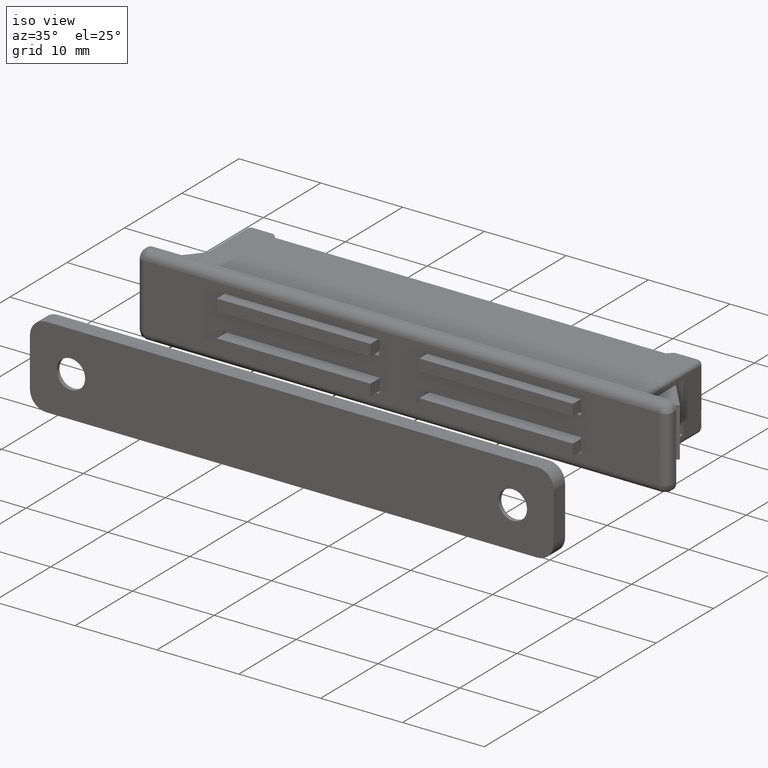
[diagram: clean part render]
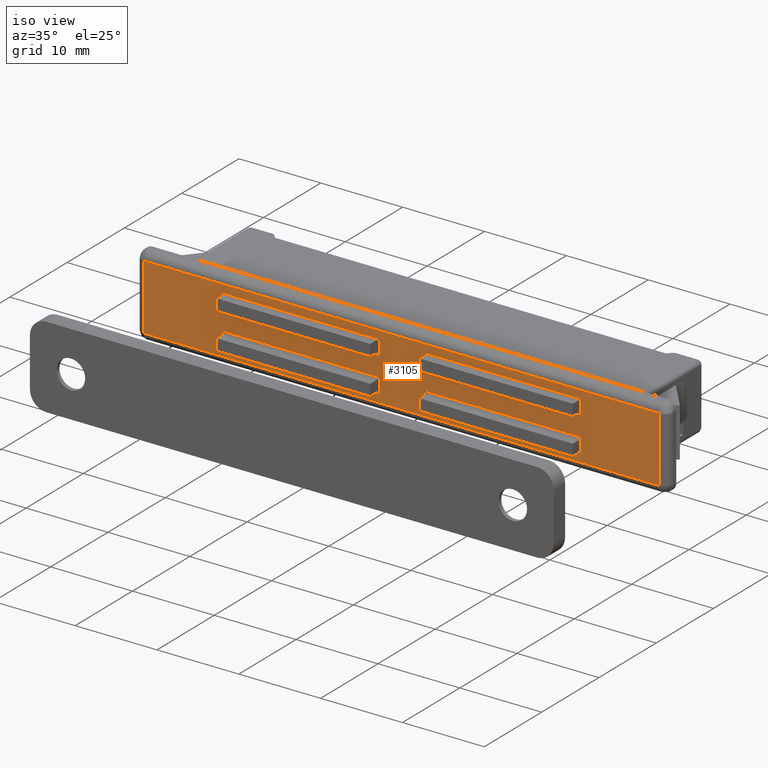
[diagram: same view with one face highlighted and labeled with its STEP entity id]
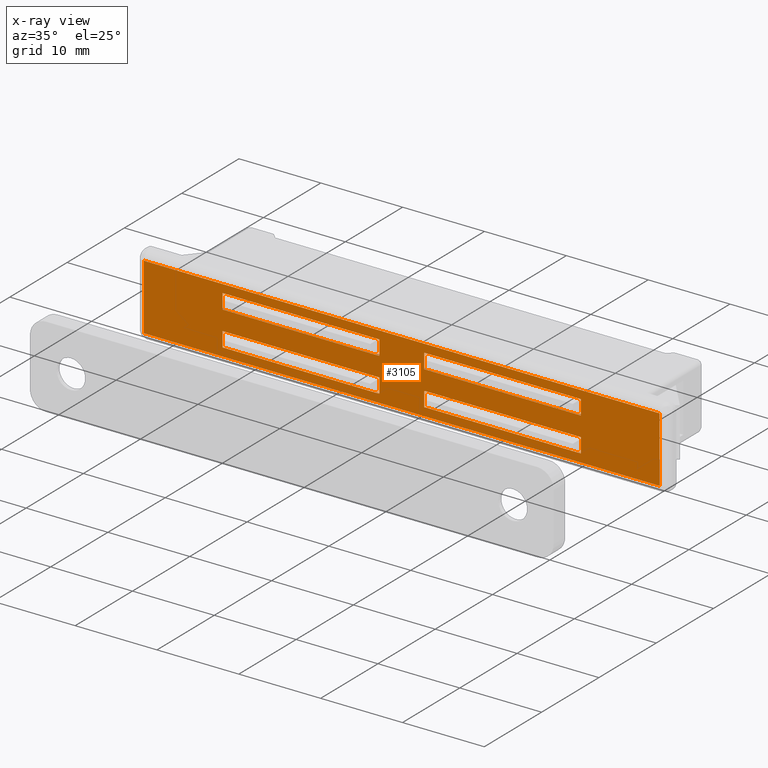
[diagram: x-ray of the same camera — body ghosted, the highlighted face saturated]
A machine part, iso view. The second image highlights one B-rep face of the part: STEP entity #3105.
The next image is the same camera in x-ray: the body ghosted, the highlighted face saturated — about 0% of this face is hidden behind the body in this view.
In plain terms, the highlighted face is a freeform B-spline surface patch.
Its self-contained STEP definition (entity closure, byte-faithful):
#1479=CARTESIAN_POINT('',(-31.500007000000000,-13.0,4.0));
#1480=VERTEX_POINT('',#1479);
#1502=CARTESIAN_POINT('',(-31.500007000000000,-13.0,-4.0));
#1503=VERTEX_POINT('',#1502);
#1515=CARTESIAN_POINT('',(-31.500007000000000,-13.0,4.0));
#1516=CARTESIAN_POINT('',(-31.500007000000000,-13.0,-4.0));
#1517=QUASI_UNIFORM_CURVE('',1,(#1515,#1516),.UNSPECIFIED.,.F.,.U.);
#1518=EDGE_CURVE('',#1480,#1503,#1517,.T.);
#1643=CARTESIAN_POINT('',(31.500004000000001,-13.0,-4.0));
#1644=VERTEX_POINT('',#1643);
#1657=CARTESIAN_POINT('',(-31.500007000000000,-13.0,-4.0));
#1658=CARTESIAN_POINT('',(31.500004000000001,-13.0,-4.0));
#1659=QUASI_UNIFORM_CURVE('',1,(#1657,#1658),.UNSPECIFIED.,.F.,.U.);
#1660=EDGE_CURVE('',#1503,#1644,#1659,.T.);
#1685=CARTESIAN_POINT('',(31.500004000000001,-13.0,4.0));
#1686=VERTEX_POINT('',#1685);
#1706=CARTESIAN_POINT('',(31.500004000000001,-13.0,4.0));
#1707=CARTESIAN_POINT('',(-31.500007000000000,-13.0,4.0));
#1708=QUASI_UNIFORM_CURVE('',1,(#1706,#1707),.UNSPECIFIED.,.F.,.U.);
#1709=EDGE_CURVE('',#1686,#1480,#1708,.T.);
#1840=CARTESIAN_POINT('',(31.500004000000001,-13.0,-4.0));
#1841=CARTESIAN_POINT('',(31.500004000000001,-13.0,4.0));
#1842=QUASI_UNIFORM_CURVE('',1,(#1840,#1841),.UNSPECIFIED.,.F.,.U.);
#1843=EDGE_CURVE('',#1644,#1686,#1842,.T.);
#2974=CARTESIAN_POINT('',(-34.646858018742783,-13.0,4.399599984494448));
#2975=CARTESIAN_POINT('',(34.646856145270768,-13.0,4.399599984494448));
#2976=CARTESIAN_POINT('',(-34.646858018742783,-13.0,-4.399600199071169));
#2977=CARTESIAN_POINT('',(34.646856145270768,-13.0,-4.399600199071169));
#2978=B_SPLINE_SURFACE_WITH_KNOTS('',1,1,((#2974,#2976),(#2975,#2977)),.UNSPECIFIED.,.F.,.F.,.U.,(2,2),(2,2),(0.0,69.293714164013551),(0.0,8.799200183565617),.UNSPECIFIED.);
#2979=ORIENTED_EDGE('',*,*,#1709,.T.);
#2980=ORIENTED_EDGE('',*,*,#1518,.T.);
#2981=ORIENTED_EDGE('',*,*,#1660,.T.);
#2982=ORIENTED_EDGE('',*,*,#1843,.T.);
#2983=EDGE_LOOP('',(#2979,#2980,#2981,#2982));
#2984=FACE_OUTER_BOUND('',#2983,.T.);
#2985=CARTESIAN_POINT('',(-2.750000000000000,-13.0,1.200012000000000));
#2986=VERTEX_POINT('',#2985);
#2987=CARTESIAN_POINT('',(-21.900001000000000,-13.0,1.200012000000000));
#2988=VERTEX_POINT('',#2987);
#2989=CARTESIAN_POINT('',(-2.750000000000000,-13.0,1.200012000000000));
#2990=CARTESIAN_POINT('',(-21.900001000000000,-13.0,1.200012000000000));
#2991=QUASI_UNIFORM_CURVE('',1,(#2989,#2990),.UNSPECIFIED.,.F.,.U.);
#2992=EDGE_CURVE('',#2986,#2988,#2991,.T.);
#2993=ORIENTED_EDGE('',*,*,#2992,.T.);
#2994=CARTESIAN_POINT('',(-21.900001000000000,-13.0,3.0));
#2995=VERTEX_POINT('',#2994);
#2996=CARTESIAN_POINT('',(-21.900001000000000,-13.0,1.200012000000000));
#2997=CARTESIAN_POINT('',(-21.900001000000000,-13.0,3.0));
#2998=QUASI_UNIFORM_CURVE('',1,(#2996,#2997),.UNSPECIFIED.,.F.,.U.);
#2999=EDGE_CURVE('',#2988,#2995,#2998,.T.);
#3000=ORIENTED_EDGE('',*,*,#2999,.T.);
#3001=CARTESIAN_POINT('',(-2.750000000000000,-13.0,3.0));
#3002=VERTEX_POINT('',#3001);
#3003=CARTESIAN_POINT('',(-21.900001000000000,-13.0,3.0));
#3004=CARTESIAN_POINT('',(-2.750000000000000,-13.0,3.0));
#3005=QUASI_UNIFORM_CURVE('',1,(#3003,#3004),.UNSPECIFIED.,.F.,.U.);
#3006=EDGE_CURVE('',#2995,#3002,#3005,.T.);
#3007=ORIENTED_EDGE('',*,*,#3006,.T.);
#3008=CARTESIAN_POINT('',(-2.750000000000000,-13.0,3.0));
#3009=CARTESIAN_POINT('',(-2.750000000000000,-13.0,1.200012000000000));
#3010=QUASI_UNIFORM_CURVE('',1,(#3008,#3009),.UNSPECIFIED.,.F.,.U.);
#3011=EDGE_CURVE('',#3002,#2986,#3010,.T.);
#3012=ORIENTED_EDGE('',*,*,#3011,.T.);
#3013=EDGE_LOOP('',(#2993,#3000,#3007,#3012));
#3014=FACE_BOUND('',#3013,.T.);
#3015=CARTESIAN_POINT('',(2.750004000000000,-13.0,3.0));
#3016=VERTEX_POINT('',#3015);
#3017=CARTESIAN_POINT('',(21.899998000000000,-13.0,3.0));
#3018=VERTEX_POINT('',#3017);
#3019=CARTESIAN_POINT('',(2.750004000000000,-13.0,3.0));
#3020=CARTESIAN_POINT('',(21.899998000000000,-13.0,3.0));
#3021=QUASI_UNIFORM_CURVE('',1,(#3019,#3020),.UNSPECIFIED.,.F.,.U.);
#3022=EDGE_CURVE('',#3016,#3018,#3021,.T.);
#3023=ORIENTED_EDGE('',*,*,#3022,.T.);
#3024=CARTESIAN_POINT('',(21.899998000000000,-13.0,1.200012000000000));
#3025=VERTEX_POINT('',#3024);
#3026=CARTESIAN_POINT('',(21.899998000000000,-13.0,3.0));
#3027=CARTESIAN_POINT('',(21.899998000000000,-13.0,1.200012000000000));
#3028=QUASI_UNIFORM_CURVE('',1,(#3026,#3027),.UNSPECIFIED.,.F.,.U.);
#3029=EDGE_CURVE('',#3018,#3025,#3028,.T.);
#3030=ORIENTED_EDGE('',*,*,#3029,.T.);
#3031=CARTESIAN_POINT('',(2.750004000000000,-13.0,1.200012000000000));
#3032=VERTEX_POINT('',#3031);
#3033=CARTESIAN_POINT('',(21.899998000000000,-13.0,1.200012000000000));
#3034=CARTESIAN_POINT('',(2.750004000000000,-13.0,1.200012000000000));
#3035=QUASI_UNIFORM_CURVE('',1,(#3033,#3034),.UNSPECIFIED.,.F.,.U.);
#3036=EDGE_CURVE('',#3025,#3032,#3035,.T.);
#3037=ORIENTED_EDGE('',*,*,#3036,.T.);
#3038=CARTESIAN_POINT('',(2.750004000000000,-13.0,1.200012000000000));
#3039=CARTESIAN_POINT('',(2.750004000000000,-13.0,3.0));
#3040=QUASI_UNIFORM_CURVE('',1,(#3038,#3039),.UNSPECIFIED.,.F.,.U.);
#3041=EDGE_CURVE('',#3032,#3016,#3040,.T.);
#3042=ORIENTED_EDGE('',*,*,#3041,.T.);
#3043=EDGE_LOOP('',(#3023,#3030,#3037,#3042));
#3044=FACE_BOUND('',#3043,.T.);
#3045=CARTESIAN_POINT('',(-2.750000000000000,-13.0,-3.0));
#3046=VERTEX_POINT('',#3045);
#3047=CARTESIAN_POINT('',(-21.900001000000000,-13.0,-3.0));
#3048=VERTEX_POINT('',#3047);
#3049=CARTESIAN_POINT('',(-2.750000000000000,-13.0,-3.0));
#3050=CARTESIAN_POINT('',(-21.900001000000000,-13.0,-3.0));
#3051=QUASI_UNIFORM_CURVE('',1,(#3049,#3050),.UNSPECIFIED.,.F.,.U.);
#3052=EDGE_CURVE('',#3046,#3048,#3051,.T.);
#3053=ORIENTED_EDGE('',*,*,#3052,.T.);
#3054=CARTESIAN_POINT('',(-21.900001000000000,-13.0,-1.199997000000000));
#3055=VERTEX_POINT('',#3054);
#3056=CARTESIAN_POINT('',(-21.900001000000000,-13.0,-3.0));
#3057=CARTESIAN_POINT('',(-21.900001000000000,-13.0,-1.199997000000000));
#3058=QUASI_UNIFORM_CURVE('',1,(#3056,#3057),.UNSPECIFIED.,.F.,.U.);
#3059=EDGE_CURVE('',#3048,#3055,#3058,.T.);
#3060=ORIENTED_EDGE('',*,*,#3059,.T.);
#3061=CARTESIAN_POINT('',(-2.750000000000000,-13.0,-1.199997000000000));
#3062=VERTEX_POINT('',#3061);
#3063=CARTESIAN_POINT('',(-21.900001000000000,-13.0,-1.199997000000000));
#3064=CARTESIAN_POINT('',(-2.750000000000000,-13.0,-1.199997000000000));
#3065=QUASI_UNIFORM_CURVE('',1,(#3063,#3064),.UNSPECIFIED.,.F.,.U.);
#3066=EDGE_CURVE('',#3055,#3062,#3065,.T.);
#3067=ORIENTED_EDGE('',*,*,#3066,.T.);
#3068=CARTESIAN_POINT('',(-2.750000000000000,-13.0,-1.199997000000000));
#3069=CARTESIAN_POINT('',(-2.750000000000000,-13.0,-3.0));
#3070=QUASI_UNIFORM_CURVE('',1,(#3068,#3069),.UNSPECIFIED.,.F.,.U.);
#3071=EDGE_CURVE('',#3062,#3046,#3070,.T.);
#3072=ORIENTED_EDGE('',*,*,#3071,.T.);
#3073=EDGE_LOOP('',(#3053,#3060,#3067,#3072));
#3074=FACE_BOUND('',#3073,.T.);
#3075=CARTESIAN_POINT('',(21.899998000000000,-13.0,-3.0));
#3076=VERTEX_POINT('',#3075);
#3077=CARTESIAN_POINT('',(2.750004000000000,-13.0,-3.0));
#3078=VERTEX_POINT('',#3077);
#3079=CARTESIAN_POINT('',(21.899998000000000,-13.0,-3.0));
#3080=CARTESIAN_POINT('',(2.750004000000000,-13.0,-3.0));
#3081=QUASI_UNIFORM_CURVE('',1,(#3079,#3080),.UNSPECIFIED.,.F.,.U.);
#3082=EDGE_CURVE('',#3076,#3078,#3081,.T.);
#3083=ORIENTED_EDGE('',*,*,#3082,.T.);
#3084=CARTESIAN_POINT('',(2.750004000000000,-13.0,-1.199997000000000));
#3085=VERTEX_POINT('',#3084);
#3086=CARTESIAN_POINT('',(2.750004000000000,-13.0,-3.0));
#3087=CARTESIAN_POINT('',(2.750004000000000,-13.0,-1.199997000000000));
#3088=QUASI_UNIFORM_CURVE('',1,(#3086,#3087),.UNSPECIFIED.,.F.,.U.);
#3089=EDGE_CURVE('',#3078,#3085,#3088,.T.);
#3090=ORIENTED_EDGE('',*,*,#3089,.T.);
#3091=CARTESIAN_POINT('',(21.899998000000000,-13.0,-1.199997000000000));
#3092=VERTEX_POINT('',#3091);
#3093=CARTESIAN_POINT('',(2.750004000000000,-13.0,-1.199997000000000));
#3094=CARTESIAN_POINT('',(21.899998000000000,-13.0,-1.199997000000000));
#3095=QUASI_UNIFORM_CURVE('',1,(#3093,#3094),.UNSPECIFIED.,.F.,.U.);
#3096=EDGE_CURVE('',#3085,#3092,#3095,.T.);
#3097=ORIENTED_EDGE('',*,*,#3096,.T.);
#3098=CARTESIAN_POINT('',(21.899998000000000,-13.0,-1.199997000000000));
#3099=CARTESIAN_POINT('',(21.899998000000000,-13.0,-3.0));
#3100=QUASI_UNIFORM_CURVE('',1,(#3098,#3099),.UNSPECIFIED.,.F.,.U.);
#3101=EDGE_CURVE('',#3092,#3076,#3100,.T.);
#3102=ORIENTED_EDGE('',*,*,#3101,.T.);
#3103=EDGE_LOOP('',(#3083,#3090,#3097,#3102));
#3104=FACE_BOUND('',#3103,.T.);
#3105=ADVANCED_FACE('',(#2984,#3014,#3044,#3074,#3104),#2978,.F.);